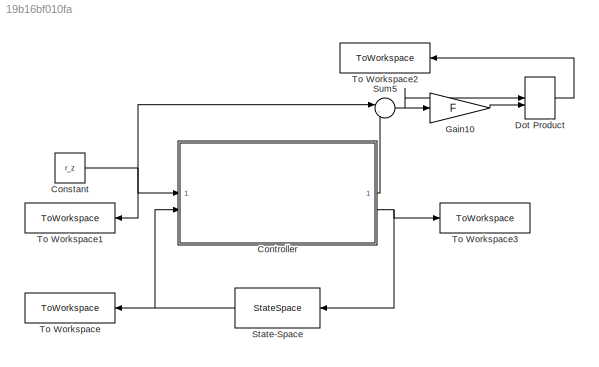
MODEL slx_19b16bf010fa
KIND model
CONFIG AbsTol = auto
CONFIG EnableMultiTasking = off
CONFIG FixedStep = Ts
CONFIG MaxStep = auto
CONFIG MinStep = auto
CONFIG RelTol = 1e-3
CONFIG SampleTimeConstraint = Unconstrained
CONFIG SolverName = VariableStepAuto
CONFIG StartTime = 0.0
CONFIG StopTime = stop_time
BLOCK [Constant] Constant
  Value = r_z
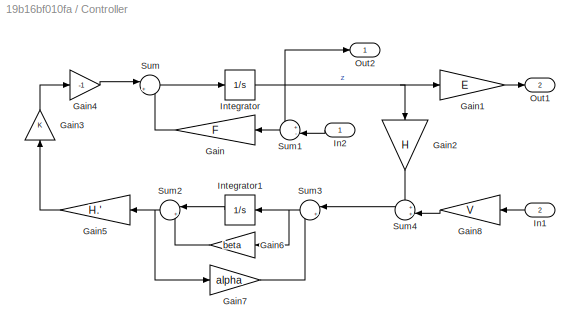
BLOCK [SubSystem] Controller
BLOCK [Gain] Controller/Gain
  Gain = F
  Multiplication = Matrix(K*u) (u vector)
  NameLocation = top
BLOCK [Gain] Controller/Gain1
  Gain = E
  Multiplication = Matrix(K*u) (u vector)
BLOCK [Gain] Controller/Gain2
  Gain = H
  Multiplication = Matrix(K*u) (u vector)
  NameLocation = left
BLOCK [Gain] Controller/Gain3
  Gain = K
  NameLocation = right
BLOCK [Gain] Controller/Gain4
  Gain = -1
BLOCK [Gain] Controller/Gain5
  Gain = H.'
  Multiplication = Matrix(K*u) (u vector)
  NameLocation = top
BLOCK [Gain] Controller/Gain6
  Gain = beta
  NameLocation = top
BLOCK [Gain] Controller/Gain7
  Gain = alpha
BLOCK [Gain] Controller/Gain8
  Gain = V
  Multiplication = Matrix(K*u) (u vector)
  NameLocation = top
BLOCK [Inport] Controller/In1
  Port = 2
BLOCK [Inport] Controller/In2
BLOCK [Integrator] Controller/Integrator
  InitialCondition = zeros((m + n) *N, 1)
BLOCK [Integrator] Controller/Integrator1
  InitialCondition = zeros(n * N, 1)
  NameLocation = top
BLOCK [Outport] Controller/Out1
  Port = 2
BLOCK [Outport] Controller/Out2
BLOCK [Sum] Controller/Sum
  Inputs = |+-
BLOCK [Sum] Controller/Sum1
  Inputs = +-|
  NameLocation = top
BLOCK [Sum] Controller/Sum2
  Inputs = |++
  NameLocation = top
BLOCK [Sum] Controller/Sum3
  Inputs = |+-
  NameLocation = top
BLOCK [Sum] Controller/Sum4
  Inputs = ++|
  NameLocation = top
BLOCK [DotProduct] Dot Product
  OutDataTypeStr = Inherit: Inherit via internal rule
BLOCK [Gain] Gain10
  Gain = F
  Multiplication = Matrix(K*u) (u vector)
BLOCK [StateSpace] State-Space
  A = A_c
  B = B_c
  C = C
  D = D
  InitialCondition = x0
  NameLocation = top
  ParameterTunability = Unconstrained
BLOCK [Sum] Sum5
  Inputs = |-+
BLOCK [ToWorkspace] To Workspace
  FixptAsFi = on
  MaxDataPoints = inf
  NameLocation = top
  SampleTime = -1
  SaveFormat = Timeseries
  VariableName = x
BLOCK [ToWorkspace] To Workspace1
  FixptAsFi = on
  MaxDataPoints = inf
  NameLocation = top
  SampleTime = -1
  SaveFormat = Timeseries
  VariableName = r
BLOCK [ToWorkspace] To Workspace2
  FixptAsFi = on
  MaxDataPoints = inf
  NameLocation = top
  SampleTime = -1
  SaveFormat = Timeseries
  VariableName = opt_value
BLOCK [ToWorkspace] To Workspace3
  FixptAsFi = on
  MaxDataPoints = inf
  SampleTime = -1
  SaveFormat = Timeseries
  VariableName = u
NET Constant:1 -> Controller:1, Sum5:1, To Workspace1:1
LINE Controller/Gain1:1 -> Controller/Out1:1
LINE Controller/Gain2:1 -> Controller/Sum4:1
LINE Controller/Gain3:1 -> Controller/Gain4:1
LINE Controller/Gain4:1 -> Controller/Sum:1
LINE Controller/Gain5:1 -> Controller/Gain3:1
LINE Controller/Gain6:1 -> Controller/Sum2:2
LINE Controller/Gain7:1 -> Controller/Sum3:2
LINE Controller/Gain8:1 -> Controller/Sum4:2
LINE Controller/Gain:1 -> Controller/Sum:2
LINE Controller/In1:1 -> Controller/Gain8:1
LINE Controller/In2:1 -> Controller/Sum1:2
LINE Controller/Integrator1:1 -> Controller/Sum2:1
NET Controller/Integrator:1 -> Controller/Gain1:1, Controller/Gain2:1, Controller/Out2:1, Controller/Sum1:1
LINE Controller/Sum1:1 -> Controller/Gain:1
NET Controller/Sum2:1 -> Controller/Gain5:1, Controller/Gain7:1
NET Controller/Sum3:1 -> Controller/Gain6:1, Controller/Integrator1:1
LINE Controller/Sum4:1 -> Controller/Sum3:1
LINE Controller/Sum:1 -> Controller/Integrator:1
LINE Controller:1 -> Sum5:2
NET Controller:2 -> State-Space:1, To Workspace3:1
LINE Dot Product:1 -> To Workspace2:1
LINE Gain10:1 -> Dot Product:2
NET State-Space:1 -> Controller:2, To Workspace:1
NET Sum5:1 -> Dot Product:1, Gain10:1
note: NET lines group one-source signal fan-out (src -> all destinations, sorted); 1:1 wires keep LINE
